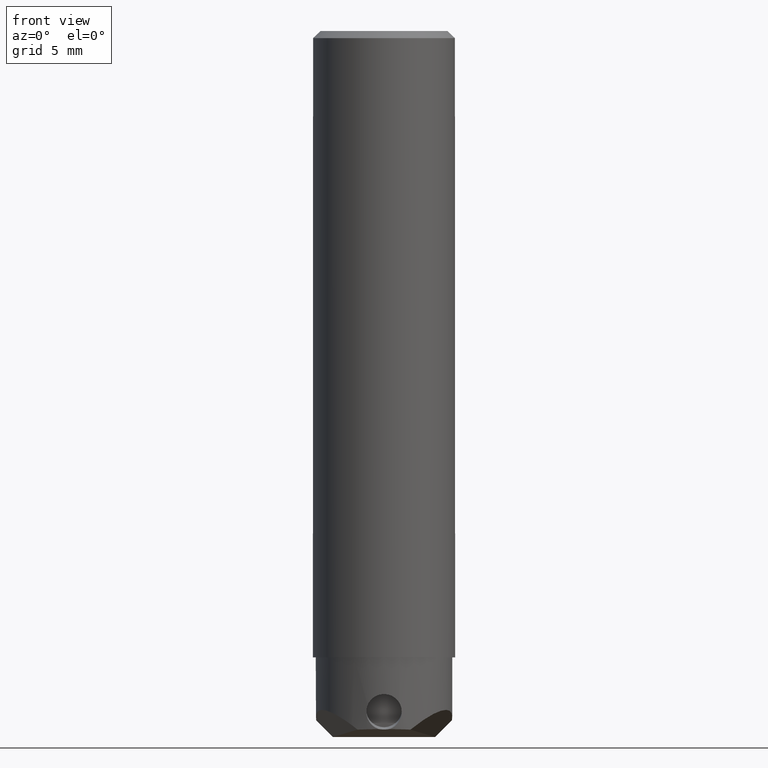
[diagram: clean part render]
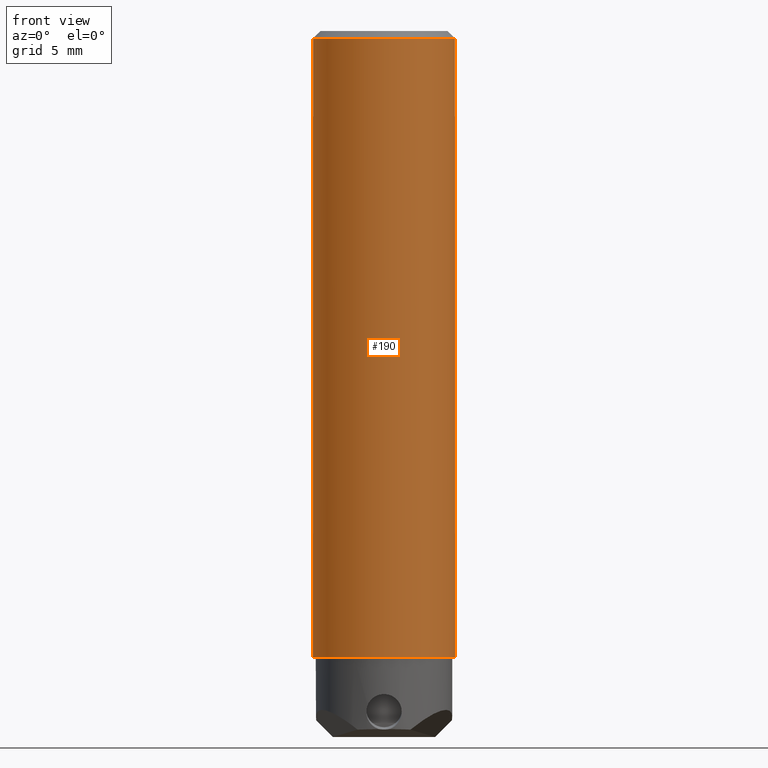
[diagram: same view with one face highlighted and labeled with its STEP entity id]
A machine part, front view. The second image highlights one B-rep face of the part: STEP entity #190.
In plain terms, the highlighted cylindrical surface (partial cylindrical patch) has radius 5 mm, axis along (0, 0, -1).
Its self-contained STEP definition (entity closure, byte-faithful):
#55=CYLINDRICAL_SURFACE('',#1232,5.);
#83=ELLIPSE('',#1225,6.10387294379393,5.);
#84=ELLIPSE('',#1226,6.10387294379393,5.);
#97=FACE_OUTER_BOUND('',#281,.T.);
#158=B_SPLINE_CURVE_WITH_KNOTS('',3,(#1754,#1755,#1756,#1757,#1758,#1759,
#1760,#1761,#1762,#1763,#1764,#1765,#1766),.UNSPECIFIED.,.F.,.F.,(4,3,3,
3,4),(0.,0.320372178690891,0.641945861555475,0.947178015975211,1.),
 .UNSPECIFIED.);
#159=B_SPLINE_CURVE_WITH_KNOTS('',3,(#1768,#1769,#1770,#1771),
 .UNSPECIFIED.,.F.,.F.,(4,4),(0.,1.),.UNSPECIFIED.);
#160=B_SPLINE_CURVE_WITH_KNOTS('',3,(#1777,#1778,#1779,#1780),
 .UNSPECIFIED.,.F.,.F.,(4,4),(0.,1.),.UNSPECIFIED.);
#161=B_SPLINE_CURVE_WITH_KNOTS('',3,(#1782,#1783,#1784,#1785,#1786,#1787,
#1788,#1789,#1790,#1791,#1792,#1793,#1794),.UNSPECIFIED.,.F.,.F.,(4,3,3,
3,4),(0.,0.29599292597273,0.591669111955343,0.892272805064813,1.),
 .UNSPECIFIED.);
#190=ADVANCED_FACE('',(#97),#55,.T.);
#281=EDGE_LOOP('',(#503,#504,#505,#506,#507,#508,#509,#510,#511,#512,#513,
#514));
#345=LINE('',#1725,#417);
#346=LINE('',#1741,#418);
#417=VECTOR('',#1382,1.);
#418=VECTOR('',#1383,1.);
#503=ORIENTED_EDGE('',*,*,#944,.F.);
#504=ORIENTED_EDGE('',*,*,#949,.T.);
#505=ORIENTED_EDGE('',*,*,#950,.T.);
#506=ORIENTED_EDGE('',*,*,#941,.F.);
#507=ORIENTED_EDGE('',*,*,#948,.F.);
#508=ORIENTED_EDGE('',*,*,#951,.T.);
#509=ORIENTED_EDGE('',*,*,#952,.T.);
#510=ORIENTED_EDGE('',*,*,#953,.T.);
#511=ORIENTED_EDGE('',*,*,#954,.T.);
#512=ORIENTED_EDGE('',*,*,#955,.T.);
#513=ORIENTED_EDGE('',*,*,#956,.T.);
#514=ORIENTED_EDGE('',*,*,#946,.F.);
#831=VERTEX_POINT('',#1726);
#832=VERTEX_POINT('',#1727);
#833=VERTEX_POINT('',#1740);
#834=VERTEX_POINT('',#1742);
#835=VERTEX_POINT('',#1746);
#836=VERTEX_POINT('',#1748);
#837=VERTEX_POINT('',#1752);
#838=VERTEX_POINT('',#1767);
#839=VERTEX_POINT('',#1772);
#840=VERTEX_POINT('',#1774);
#841=VERTEX_POINT('',#1776);
#842=VERTEX_POINT('',#1781);
#941=EDGE_CURVE('',#831,#832,#345,.T.);
#944=EDGE_CURVE('',#833,#834,#346,.T.);
#946=EDGE_CURVE('',#834,#835,#83,.T.);
#948=EDGE_CURVE('',#836,#831,#84,.T.);
#949=EDGE_CURVE('',#833,#837,#1109,.T.);
#950=EDGE_CURVE('',#837,#832,#1110,.T.);
#951=EDGE_CURVE('',#836,#838,#158,.T.);
#952=EDGE_CURVE('',#838,#839,#159,.T.);
#953=EDGE_CURVE('',#839,#840,#1111,.T.);
#954=EDGE_CURVE('',#840,#841,#1112,.T.);
#955=EDGE_CURVE('',#841,#842,#160,.T.);
#956=EDGE_CURVE('',#842,#835,#161,.T.);
#1109=CIRCLE('',#1228,5.);
#1110=CIRCLE('',#1229,5.);
#1111=CIRCLE('',#1230,5.);
#1112=CIRCLE('',#1231,5.);
#1225=AXIS2_PLACEMENT_3D('',#1745,#1387,#1388);
#1226=AXIS2_PLACEMENT_3D('',#1749,#1390,#1391);
#1228=AXIS2_PLACEMENT_3D('',#1751,#1394,#1395);
#1229=AXIS2_PLACEMENT_3D('',#1753,#1396,#1397);
#1230=AXIS2_PLACEMENT_3D('',#1773,#1398,#1399);
#1231=AXIS2_PLACEMENT_3D('',#1775,#1400,#1401);
#1232=AXIS2_PLACEMENT_3D('',#1795,#1402,#1403);
#1382=DIRECTION('',(0.,0.,1.));
#1383=DIRECTION('',(0.,0.,-1.));
#1387=DIRECTION('',(0.,0.573576436348488,-0.819152044290783));
#1388=DIRECTION('',(0.,-0.819152044290783,-0.573576436348488));
#1390=DIRECTION('',(0.,0.573576436348488,-0.819152044290783));
#1391=DIRECTION('',(0.,-0.819152044290783,-0.573576436348488));
#1394=DIRECTION('',(0.,0.,-1.));
#1395=DIRECTION('',(0.6,0.8,0.));
#1396=DIRECTION('',(0.,0.,-1.));
#1397=DIRECTION('',(0.,-1.,0.));
#1398=DIRECTION('',(0.,0.,1.));
#1399=DIRECTION('',(-0.900137503633713,0.435605870658406,0.));
#1400=DIRECTION('',(0.,0.,1.));
#1401=DIRECTION('',(0.,-1.,0.));
#1402=DIRECTION('',(0.,0.,-1.));
#1403=DIRECTION('',(0.,1.,0.));
#1725=CARTESIAN_POINT('',(-3.,4.,-38.54445821186));
#1726=CARTESIAN_POINT('',(-2.99999999999981,4.,-38.5444582118603));
#1727=CARTESIAN_POINT('',(-3.,4.,-0.5));
#1740=CARTESIAN_POINT('',(3.,4.,-0.5));
#1741=CARTESIAN_POINT('',(3.,4.,-0.5));
#1742=CARTESIAN_POINT('',(2.99999999999981,4.,-38.5444582118603));
#1745=CARTESIAN_POINT('',(0.,0.,-41.3452883646808));
#1746=CARTESIAN_POINT('',(4.5531774667378,2.0660529897345,-39.89862248694));
#1748=CARTESIAN_POINT('',(-4.55317746673809,2.06605298973393,-39.8986224869392));
#1749=CARTESIAN_POINT('',(0.,0.,-41.3452883646808));
#1751=CARTESIAN_POINT('',(0.,0.,-0.5));
#1752=CARTESIAN_POINT('',(0.,-5.,-0.5));
#1753=CARTESIAN_POINT('',(0.,0.,-0.5));
#1754=CARTESIAN_POINT('',(-4.55317746673809,2.06605298973393,-39.8986224869392));
#1755=CARTESIAN_POINT('',(-4.57297883705483,2.02241463506221,-39.9291783918351));
#1756=CARTESIAN_POINT('',(-4.59037181175124,1.98235750548693,-39.9679322774473));
#1757=CARTESIAN_POINT('',(-4.60418417691724,1.94974051222845,-40.0123779061208));
#1758=CARTESIAN_POINT('',(-4.6180277546241,1.91704981260456,-40.0569239709602));
#1759=CARTESIAN_POINT('',(-4.62866355223128,1.89097577890555,-40.1084971436094));
#1760=CARTESIAN_POINT('',(-4.63532452018251,1.87450435918265,-40.1626174005986));
#1761=CARTESIAN_POINT('',(-4.64165269790145,1.85885587204792,-40.2140337423269));
#1762=CARTESIAN_POINT('',(-4.64458779475189,1.85143385490416,-40.2692267061612));
#1763=CARTESIAN_POINT('',(-4.643935025485,1.85306974479474,-40.3233142179926));
#1764=CARTESIAN_POINT('',(-4.6438203558457,1.85335711571309,-40.3328155774886));
#1765=CARTESIAN_POINT('',(-4.64359741088308,1.85391582351551,-40.3423118931186));
#1766=CARTESIAN_POINT('',(-4.64326665376921,1.8547438588639,-40.35177638046));
#1767=CARTESIAN_POINT('',(-4.64326665376921,1.8547438588639,-40.35177638046));
#1768=CARTESIAN_POINT('',(-4.643266653769,1.854743858864,-40.35177638046));
#1769=CARTESIAN_POINT('',(-4.600215401707,1.962520704787,-41.58367136638));
#1770=CARTESIAN_POINT('',(-4.552829485998,2.070283007528,-42.81540012298));
#1771=CARTESIAN_POINT('',(-4.500687518169,2.178029353292,-44.04694649049));
#1772=CARTESIAN_POINT('',(-4.500687518169,2.178029353292,-44.04694649049));
#1773=CARTESIAN_POINT('',(0.,0.,-44.04694649049));
#1774=CARTESIAN_POINT('',(0.,-5.,-44.04694649049));
#1775=CARTESIAN_POINT('',(0.,0.,-44.04694649049));
#1776=CARTESIAN_POINT('',(4.500687518169,2.178029353291,-44.04694649049));
#1777=CARTESIAN_POINT('',(4.500687518169,2.178029353291,-44.04694649049));
#1778=CARTESIAN_POINT('',(4.552829485998,2.070283007528,-42.81540012298));
#1779=CARTESIAN_POINT('',(4.600215401707,1.962520704787,-41.58367136639));
#1780=CARTESIAN_POINT('',(4.643266653769,1.854743858865,-40.35177638047));
#1781=CARTESIAN_POINT('',(4.64326665376921,1.8547438588644,-40.351776380465));
#1782=CARTESIAN_POINT('',(4.64326665376921,1.8547438588644,-40.351776380465));
#1783=CARTESIAN_POINT('',(4.64509172720518,1.85017487076103,-40.2995526074683));
#1784=CARTESIAN_POINT('',(4.6435756458822,1.85401405062887,-40.2457460134456));
#1785=CARTESIAN_POINT('',(4.63881308795948,1.86585453210475,-40.1948672354355));
#1786=CARTESIAN_POINT('',(4.63405325930931,1.87768822817211,-40.1440176144571));
#1787=CARTESIAN_POINT('',(4.62592101747373,1.89780720400035,-40.0947239973084));
#1788=CARTESIAN_POINT('',(4.61491809101691,1.92419619924915,-40.0507816165788));
#1789=CARTESIAN_POINT('',(4.6037254049252,1.95104030670132,-40.0060813929102));
#1790=CARTESIAN_POINT('',(4.58927388000887,1.98501768412109,-39.9657563424788));
#1791=CARTESIAN_POINT('',(4.57244502986935,2.02305374343419,-39.9323790999656));
#1792=CARTESIAN_POINT('',(4.56634800262718,2.03683406044303,-39.9202866542438));
#1793=CARTESIAN_POINT('',(4.55990905604634,2.05121788099959,-39.9090101419117));
#1794=CARTESIAN_POINT('',(4.55317746673696,2.06605298973642,-39.8986224869441));
#1795=CARTESIAN_POINT('',(0.,0.,0.3709389298099));